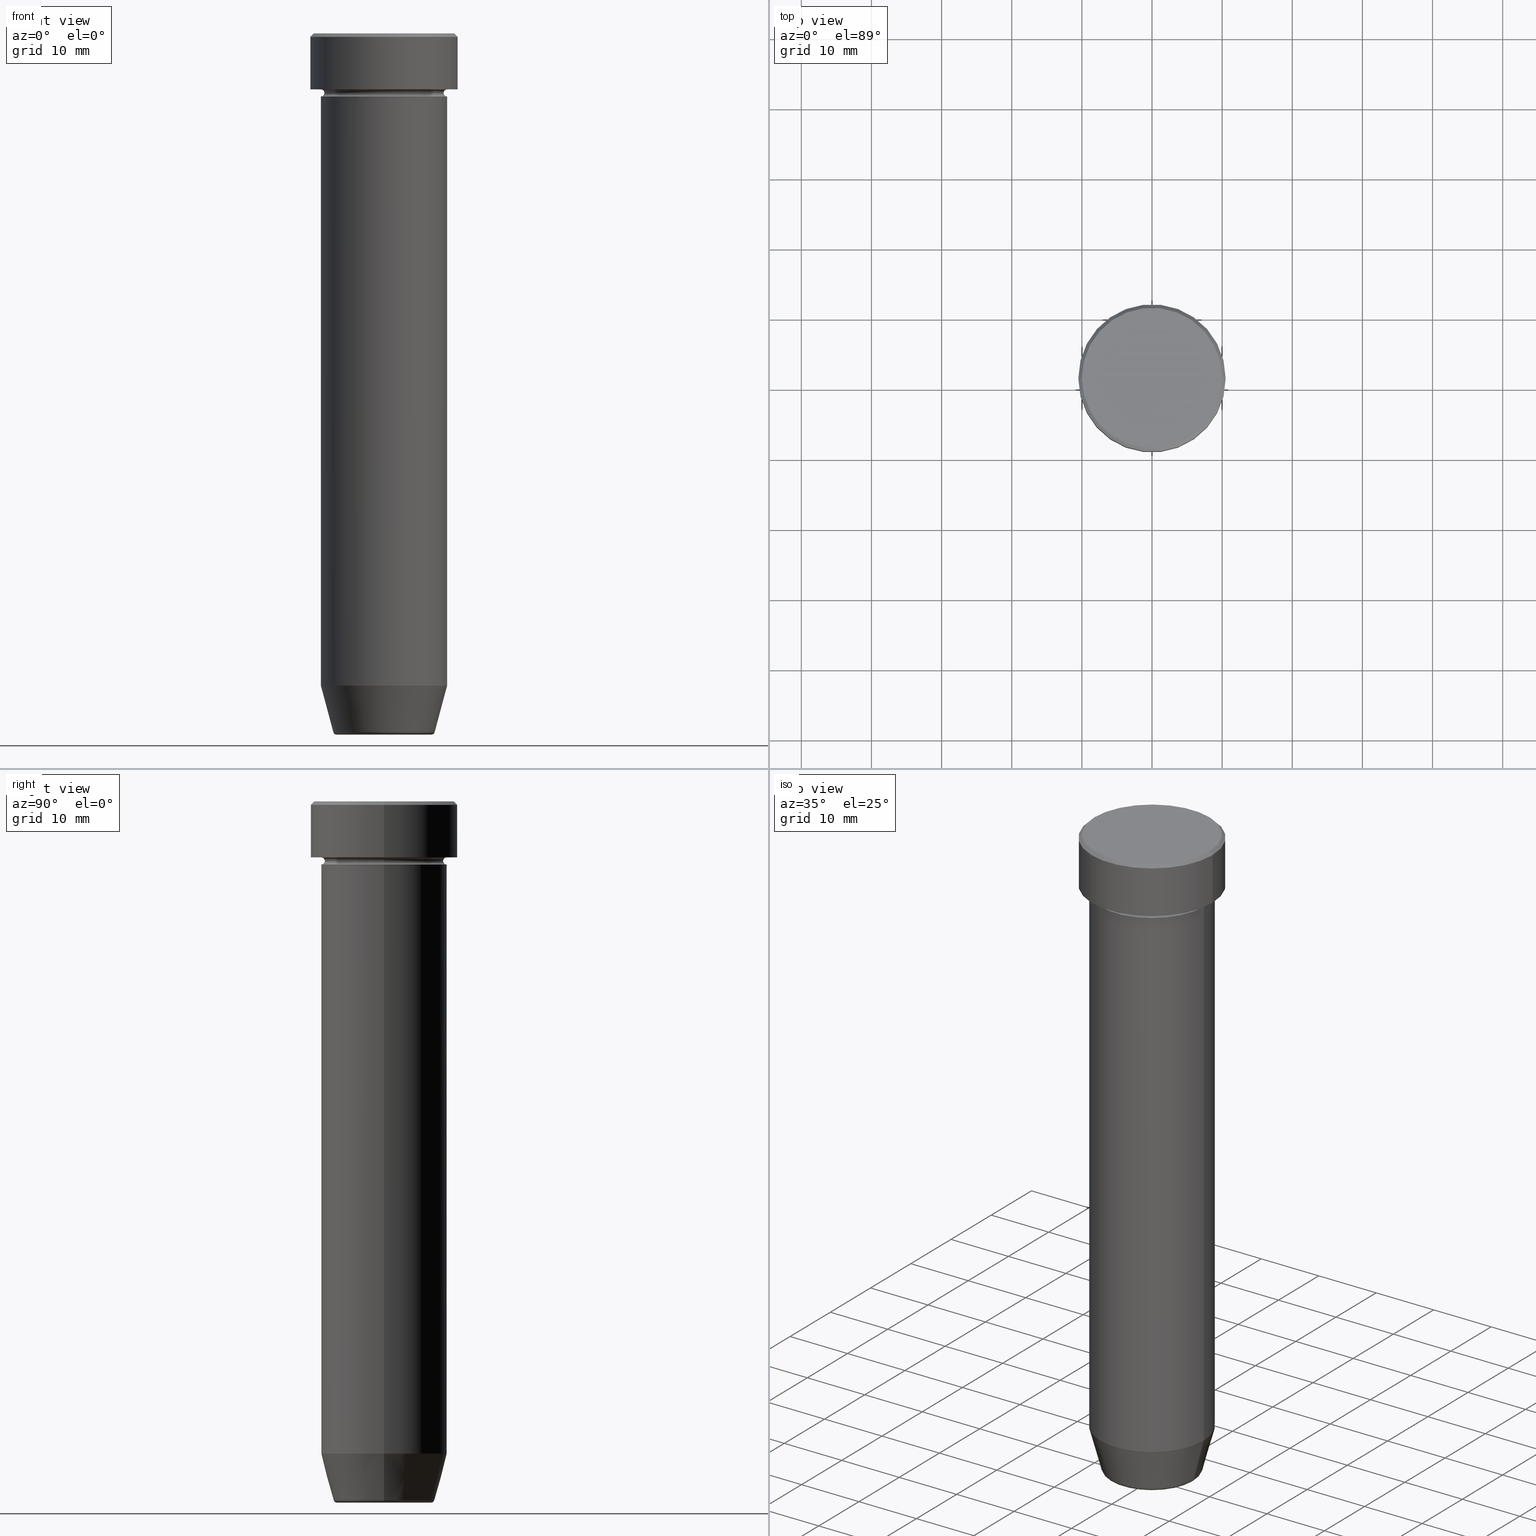
[diagram: canonical four-view strip — front | top / right | iso, engineering-drawing reading convention]
A machine part, canonical four-view strip (front | top / right | iso — engineering-drawing reading convention). The complete STEP part file that produces these views, byte-faithful:
ISO-10303-21;
HEADER;
FILE_DESCRIPTION (( 'STEP AP203' ),
    '1' );
FILE_NAME ('1b87.STEP',
    '2024-01-02T22:08:16',
    ( '' ),
    ( '' ),
    'SwSTEP 2.0',
    'SolidWorks 2019',
    '' );
FILE_SCHEMA (( 'CONFIG_CONTROL_DESIGN' ));
ENDSEC;

DATA;
#1 = CALENDAR_DATE ( 2024, 2, 1 ) ;
#2 = CARTESIAN_POINT ( 'NONE',  ( 0.000000000000000000, 0.000000000000000000, -8.000000000000000000 ) ) ;
#3 = EDGE_CURVE ( 'NONE', #588, #248, #458, .T. ) ;
#4 = CARTESIAN_POINT ( 'NONE',  ( 0.000000000000000000, 0.000000000000000000, -99.62940952255128479 ) ) ;
#5 = CIRCLE ( 'NONE', #575, 9.000000000000000000 ) ;
#6 = ORIENTED_EDGE ( 'NONE', *, *, #279, .T. ) ;
#7 = CONICAL_SURFACE ( 'NONE', #587, 10.00000000000000178, 0.7853981633974447263 ) ;
#8 = DIRECTION ( 'NONE',  ( -0.000000000000000000, -0.000000000000000000, 1.000000000000000000 ) ) ;
#9 = DIRECTION ( 'NONE',  ( 1.000000000000000000, 0.000000000000000000, 0.000000000000000000 ) ) ;
#10 = ORIENTED_EDGE ( 'NONE', *, *, #152, .F. ) ;
#11 = LINE ( 'NONE', #205, #412 ) ;
#12 = ORIENTED_EDGE ( 'NONE', *, *, #175, .T. ) ;
#13 = APPLICATION_PROTOCOL_DEFINITION ( 'international standard', 'config_control_design', 1994, #269 ) ;
#14 = CARTESIAN_POINT ( 'NONE',  ( -9.000000000000000000, 1.102182119232617714E-15, -9.000000000000001776 ) ) ;
#15 = ORIENTED_EDGE ( 'NONE', *, *, #62, .T. ) ;
#16 = CIRCLE ( 'NONE', #505, 6.740692158992655614 ) ;
#17 = AXIS2_PLACEMENT_3D ( 'NONE', #405, #355, #538 ) ;
#18 = CARTESIAN_POINT ( 'NONE',  ( 9.000000000000000000, 1.102182119232617714E-15, -8.000000000000000000 ) ) ;
#19 = ORIENTED_EDGE ( 'NONE', *, *, #140, .T. ) ;
#20 = FACE_OUTER_BOUND ( 'NONE', #246, .T. ) ;
#21 = ORIENTED_EDGE ( 'NONE', *, *, #490, .F. ) ;
#22 = ADVANCED_FACE ( 'NONE', ( #365 ), #503, .T. ) ;
#23 = CARTESIAN_POINT ( 'NONE',  ( -9.000000000000000000, 1.102182119232617714E-15, -8.500000000000000000 ) ) ;
#24 = VERTEX_POINT ( 'NONE', #506 ) ;
#25 = TOROIDAL_SURFACE ( 'NONE', #155, 9.000000000000000000, 0.5000000000000000000 ) ;
#26 = APPROVAL_PERSON_ORGANIZATION ( #45, #323, #277 ) ;
#27 = EDGE_CURVE ( 'NONE', #495, #295, #410, .T. ) ;
#28 = DIRECTION ( 'NONE',  ( -0.000000000000000000, -0.000000000000000000, 1.000000000000000000 ) ) ;
#29 = VERTEX_POINT ( 'NONE', #46 ) ;
#30 = DIRECTION ( 'NONE',  ( 1.000000000000000000, 0.000000000000000000, 0.000000000000000000 ) ) ;
#31 = ORIENTED_EDGE ( 'NONE', *, *, #477, .F. ) ;
#32 = DIRECTION ( 'NONE',  ( -0.000000000000000000, -0.000000000000000000, 1.000000000000000000 ) ) ;
#33 = ORIENTED_EDGE ( 'NONE', *, *, #27, .F. ) ;
#34 = EDGE_CURVE ( 'NONE', #73, #352, #136, .T. ) ;
#35 = AXIS2_PLACEMENT_3D ( 'NONE', #599, #324, #271 ) ;
#36 = TOROIDAL_SURFACE ( 'NONE', #224, 9.000000000000000000, 0.5000000000000000000 ) ;
#37 = AXIS2_PLACEMENT_3D ( 'NONE', #581, #172, #211 ) ;
#38 = CARTESIAN_POINT ( 'NONE',  ( 10.50000000000000000, 0.000000000000000000, -0.5000000000000023315 ) ) ;
#39 = DIRECTION ( 'NONE',  ( 0.000000000000000000, -1.000000000000000000, 0.000000000000000000 ) ) ;
#40 = CC_DESIGN_PERSON_AND_ORGANIZATION_ASSIGNMENT ( #48, #236, ( #432 ) ) ;
#41 = COORDINATED_UNIVERSAL_TIME_OFFSET ( 1, 0, .AHEAD. ) ;
#42 = DIRECTION ( 'NONE',  ( 0.000000000000000000, -0.000000000000000000, 1.000000000000000000 ) ) ;
#43 = ADVANCED_FACE ( 'NONE', ( #321 ), #232, .T. ) ;
#44 = DIRECTION ( 'NONE',  ( -0.2588190451025210725, 3.169619151431769255E-17, 0.9659258262890680902 ) ) ;
#45 = PERSON_AND_ORGANIZATION ( #363, #118 ) ;
#46 = CARTESIAN_POINT ( 'NONE',  ( 9.000000000000000000, 0.000000000000000000, -22.00000000000000000 ) ) ;
#47 = CARTESIAN_POINT ( 'NONE',  ( 0.000000000000000000, 0.000000000000000000, -99.50000000000000000 ) ) ;
#48 = PERSON_AND_ORGANIZATION ( #363, #118 ) ;
#49 = AXIS2_PLACEMENT_3D ( 'NONE', #278, #594, #52 ) ;
#50 = FACE_OUTER_BOUND ( 'NONE', #81, .T. ) ;
#51 = AXIS2_PLACEMENT_3D ( 'NONE', #264, #582, #173 ) ;
#52 = DIRECTION ( 'NONE',  ( -1.000000000000000000, 0.000000000000000000, 0.000000000000000000 ) ) ;
#53 = DIRECTION ( 'NONE',  ( -0.000000000000000000, -0.000000000000000000, 1.000000000000000000 ) ) ;
#54 = VERTEX_POINT ( 'NONE', #368 ) ;
#55 = DATE_AND_TIME ( #299, #326 ) ;
#56 = CARTESIAN_POINT ( 'NONE',  ( 0.000000000000000000, 0.000000000000000000, -22.00000000000000000 ) ) ;
#57 = CIRCLE ( 'NONE', #333, 6.740692158992655614 ) ;
#58 = CC_DESIGN_APPROVAL ( #576, ( #432 ) ) ;
#59 = CC_DESIGN_PERSON_AND_ORGANIZATION_ASSIGNMENT ( #298, #180, ( #311 ) ) ;
#60 = DIRECTION ( 'NONE',  ( 1.000000000000000000, 0.000000000000000000, 0.000000000000000000 ) ) ;
#61 = ORIENTED_EDGE ( 'NONE', *, *, #527, .F. ) ;
#62 = EDGE_CURVE ( 'NONE', #73, #105, #302, .T. ) ;
#63 = FACE_OUTER_BOUND ( 'NONE', #336, .T. ) ;
#64 = ORIENTED_EDGE ( 'NONE', *, *, #291, .T. ) ;
#65 = FACE_OUTER_BOUND ( 'NONE', #383, .T. ) ;
#66 = ORIENTED_EDGE ( 'NONE', *, *, #256, .T. ) ;
#67 = CIRCLE ( 'NONE', #314, 10.00000000000000178 ) ;
#68 = CARTESIAN_POINT ( 'NONE',  ( 0.000000000000000000, 0.000000000000000000, -22.00000000000000000 ) ) ;
#69 = CC_DESIGN_PERSON_AND_ORGANIZATION_ASSIGNMENT ( #595, #280, ( #464 ) ) ;
#70 = ORIENTED_EDGE ( 'NONE', *, *, #349, .T. ) ;
#71 = EDGE_CURVE ( 'NONE', #261, #539, #591, .T. ) ;
#72 = CARTESIAN_POINT ( 'NONE',  ( 0.000000000000000000, 0.000000000000000000, -22.00000000000000000 ) ) ;
#73 = VERTEX_POINT ( 'NONE', #427 ) ;
#74 = FACE_OUTER_BOUND ( 'NONE', #482, .T. ) ;
#75 = EDGE_LOOP ( 'NONE', ( #12, #306 ) ) ;
#76 = PRODUCT_RELATED_PRODUCT_CATEGORY ( 'detail', '', ( #311 ) ) ;
#77 = FACE_OUTER_BOUND ( 'NONE', #565, .T. ) ;
#78 = ORIENTED_EDGE ( 'NONE', *, *, #175, .F. ) ;
#79 = EDGE_CURVE ( 'NONE', #150, #258, #197, .T. ) ;
#80 = DIRECTION ( 'NONE',  ( -1.000000000000000000, 0.000000000000000000, -0.000000000000000000 ) ) ;
#81 = EDGE_LOOP ( 'NONE', ( #116, #161, #517, #10 ) ) ;
#82 = CARTESIAN_POINT ( 'NONE',  ( -9.000000000000000000, 0.000000000000000000, -8.500000000000000000 ) ) ;
#83 = DIRECTION ( 'NONE',  ( 1.000000000000000000, 0.000000000000000000, 0.000000000000000000 ) ) ;
#84 = AXIS2_PLACEMENT_3D ( 'NONE', #162, #267, #579 ) ;
#85 = LOCAL_TIME ( 23, 8, 16.00000000000000000, #92 ) ;
#86 = DIRECTION ( 'NONE',  ( 1.000000000000000000, 0.000000000000000000, 0.000000000000000000 ) ) ;
#87 = DIRECTION ( 'NONE',  ( -1.000000000000000000, 0.000000000000000000, 0.000000000000000000 ) ) ;
#88 = DIRECTION ( 'NONE',  ( 1.000000000000000000, 0.000000000000000000, 0.000000000000000000 ) ) ;
#89 = APPROVAL_STATUS ( 'not_yet_approved' ) ;
#90 = DIRECTION ( 'NONE',  ( 0.000000000000000000, 0.000000000000000000, -1.000000000000000000 ) ) ;
#91 = ADVANCED_FACE ( 'NONE', ( #275 ), #462, .T. ) ;
#92 = COORDINATED_UNIVERSAL_TIME_OFFSET ( 1, 0, .AHEAD. ) ;
#93 = DIRECTION ( 'NONE',  ( -1.000000000000000000, 0.000000000000000000, 0.000000000000000000 ) ) ;
#94 = CARTESIAN_POINT ( 'NONE',  ( -7.124355652982136355, 8.724819346411924116E-16, -100.0000000000000000 ) ) ;
#95 = EDGE_CURVE ( 'NONE', #102, #539, #370, .T. ) ;
#96 = DATE_AND_TIME ( #377, #165 ) ;
#97 = AXIS2_PLACEMENT_3D ( 'NONE', #573, #358, #445 ) ;
#98 = DIRECTION ( 'NONE',  ( -0.000000000000000000, -0.000000000000000000, 1.000000000000000000 ) ) ;
#99 = CIRCLE ( 'NONE', #273, 10.00000000000000178 ) ;
#100 = LINE ( 'NONE', #286, #145 ) ;
#101 = CARTESIAN_POINT ( 'NONE',  ( 0.000000000000000000, 0.000000000000000000, -22.00000000000000000 ) ) ;
#102 = VERTEX_POINT ( 'NONE', #281 ) ;
#103 = DIRECTION ( 'NONE',  ( -1.000000000000000000, 0.000000000000000000, 0.000000000000000000 ) ) ;
#104 = CIRCLE ( 'NONE', #97, 0.5000000000000004441 ) ;
#105 = VERTEX_POINT ( 'NONE', #418 ) ;
#106 = MANIFOLD_SOLID_BREP ( 'Zaoblit4', #176 ) ;
#107 = DIRECTION ( 'NONE',  ( 0.000000000000000000, 0.000000000000000000, -1.000000000000000000 ) ) ;
#108 = ORIENTED_EDGE ( 'NONE', *, *, #477, .T. ) ;
#109 = APPLICATION_PROTOCOL_DEFINITION ( 'international standard', 'config_control_design', 1994, #164 ) ;
#110 = ADVANCED_FACE ( 'NONE', ( #421 ), #392, .F. ) ;
#111 = DIRECTION ( 'NONE',  ( 1.000000000000000000, 0.000000000000000000, 0.000000000000000000 ) ) ;
#112 = ORIENTED_EDGE ( 'NONE', *, *, #398, .F. ) ;
#113 = ADVANCED_FACE ( 'NONE', ( #186 ), #327, .T. ) ;
#114 = CARTESIAN_POINT ( 'NONE',  ( 0.000000000000000000, 0.000000000000000000, 0.000000000000000000 ) ) ;
#115 = AXIS2_PLACEMENT_3D ( 'NONE', #415, #142, #83 ) ;
#116 = ORIENTED_EDGE ( 'NONE', *, *, #228, .F. ) ;
#117 = AXIS2_PLACEMENT_3D ( 'NONE', #329, #510, #93 ) ;
#118 = ORGANIZATION ( 'NEUR�EN�', 'NEUR�EN�', '' ) ;
#119 = ORIENTED_EDGE ( 'NONE', *, *, #79, .T. ) ;
#120 = DIRECTION ( 'NONE',  ( 1.224646799147353207E-16, 1.000000000000000000, 0.000000000000000000 ) ) ;
#121 = ORIENTED_EDGE ( 'NONE', *, *, #513, .F. ) ;
#122 = CARTESIAN_POINT ( 'NONE',  ( 0.000000000000000000, 0.000000000000000000, 0.000000000000000000 ) ) ;
#123 = VERTEX_POINT ( 'NONE', #190 ) ;
#124 = CIRCLE ( 'NONE', #348, 0.5000000000000004441 ) ;
#125 = AXIS2_PLACEMENT_3D ( 'NONE', #220, #407, #80 ) ;
#126 = FACE_OUTER_BOUND ( 'NONE', #406, .T. ) ;
#127 = MECHANICAL_CONTEXT ( 'NONE', #164, 'mechanical' ) ;
#128 = ORIENTED_EDGE ( 'NONE', *, *, #240, .T. ) ;
#129 = ADVANCED_FACE ( 'NONE', ( #375 ), #461, .T. ) ;
#130 = FACE_OUTER_BOUND ( 'NONE', #301, .T. ) ;
#131 = CARTESIAN_POINT ( 'NONE',  ( 0.000000000000000000, 0.000000000000000000, -99.50000000000000000 ) ) ;
#132 = EDGE_CURVE ( 'NONE', #258, #150, #551, .T. ) ;
#133 = CARTESIAN_POINT ( 'NONE',  ( 0.000000000000000000, 0.000000000000000000, 0.000000000000000000 ) ) ;
#134 = CONICAL_SURFACE ( 'NONE', #253, 7.124355652982136355, 0.2617993877991497964 ) ;
#135 = DIRECTION ( 'NONE',  ( -1.000000000000000000, 1.224646799147353454E-16, 0.000000000000000000 ) ) ;
#136 = LINE ( 'NONE', #556, #486 ) ;
#137 = ADVANCED_FACE ( 'NONE', ( #50 ), #431, .T. ) ;
#138 = CALENDAR_DATE ( 2024, 2, 1 ) ;
#139 = DIRECTION ( 'NONE',  ( -0.000000000000000000, -0.000000000000000000, 1.000000000000000000 ) ) ;
#140 = EDGE_CURVE ( 'NONE', #295, #239, #5, .T. ) ;
#141 = DATE_TIME_ROLE ( 'creation_date' ) ;
#142 = DIRECTION ( 'NONE',  ( -0.000000000000000000, -0.000000000000000000, 1.000000000000000000 ) ) ;
#143 = AXIS2_PLACEMENT_3D ( 'NONE', #227, #39, #90 ) ;
#144 = AXIS2_PLACEMENT_3D ( 'NONE', #247, #522, #518 ) ;
#145 = VECTOR ( 'NONE', #577, 1000.000000000000114 ) ;
#146 = DIRECTION ( 'NONE',  ( 0.000000000000000000, 0.000000000000000000, -1.000000000000000000 ) ) ;
#147 = AXIS2_PLACEMENT_3D ( 'NONE', #72, #260, #30 ) ;
#148 = EDGE_CURVE ( 'NONE', #24, #102, #67, .T. ) ;
#149 = DIRECTION ( 'NONE',  ( 0.000000000000000000, 0.000000000000000000, -1.000000000000000000 ) ) ;
#150 = VERTEX_POINT ( 'NONE', #560 ) ;
#151 = CARTESIAN_POINT ( 'NONE',  ( 0.000000000000000000, 0.000000000000000000, -100.0000000000000000 ) ) ;
#152 = EDGE_CURVE ( 'NONE', #569, #526, #124, .T. ) ;
#153 = VERTEX_POINT ( 'NONE', #562 ) ;
#154 = DIRECTION ( 'NONE',  ( 1.000000000000000000, 0.000000000000000000, 0.000000000000000000 ) ) ;
#155 = AXIS2_PLACEMENT_3D ( 'NONE', #385, #479, #60 ) ;
#156 = ORIENTED_EDGE ( 'NONE', *, *, #328, .F. ) ;
#157 = ADVANCED_FACE ( 'NONE', ( #525 ), #36, .F. ) ;
#158 = DIRECTION ( 'NONE',  ( 1.000000000000000000, 0.000000000000000000, 0.000000000000000000 ) ) ;
#159 = ORIENTED_EDGE ( 'NONE', *, *, #520, .T. ) ;
#160 = LINE ( 'NONE', #492, #177 ) ;
#161 = ORIENTED_EDGE ( 'NONE', *, *, #490, .T. ) ;
#162 = CARTESIAN_POINT ( 'NONE',  ( 0.000000000000000000, 0.000000000000000000, 0.000000000000000000 ) ) ;
#163 = ORIENTED_EDGE ( 'NONE', *, *, #240, .F. ) ;
#164 = APPLICATION_CONTEXT ( 'configuration controlled 3d designs of mechanical parts and assemblies' ) ;
#165 = LOCAL_TIME ( 23, 8, 16.00000000000000000, #191 ) ;
#166 = EDGE_CURVE ( 'NONE', #526, #153, #292, .T. ) ;
#167 = CARTESIAN_POINT ( 'NONE',  ( -9.000000000000000000, 1.102182119232617714E-15, 0.000000000000000000 ) ) ;
#168 = ORIENTED_EDGE ( 'NONE', *, *, #196, .F. ) ;
#169 = LINE ( 'NONE', #167, #596 ) ;
#170 = ORIENTED_EDGE ( 'NONE', *, *, #62, .F. ) ;
#171 = EDGE_CURVE ( 'NONE', #261, #588, #521, .T. ) ;
#172 = DIRECTION ( 'NONE',  ( 0.000000000000000000, 0.000000000000000000, -1.000000000000000000 ) ) ;
#173 = DIRECTION ( 'NONE',  ( 1.000000000000000000, 0.000000000000000000, 0.000000000000000000 ) ) ;
#174 = ORIENTED_EDGE ( 'NONE', *, *, #414, .F. ) ;
#175 = EDGE_CURVE ( 'NONE', #569, #54, #16, .T. ) ;
#176 = CLOSED_SHELL ( 'NONE', ( #137, #129, #43, #276, #483, #589, #502, #537 ) ) ;
#177 = VECTOR ( 'NONE', #353, 1000.000000000000000 ) ;
#178 = TOROIDAL_SURFACE ( 'NONE', #351, 6.740692158992655614, 0.5000000000000000000 ) ;
#179 = DIRECTION ( 'NONE',  ( 1.000000000000000000, 0.000000000000000000, 0.000000000000000000 ) ) ;
#180 = PERSON_AND_ORGANIZATION_ROLE ( 'design_owner' ) ;
#181 = DIRECTION ( 'NONE',  ( -0.000000000000000000, -0.000000000000000000, 1.000000000000000000 ) ) ;
#182 = EDGE_CURVE ( 'NONE', #400, #583, #449, .T. ) ;
#183 = DIRECTION ( 'NONE',  ( -0.000000000000000000, -0.000000000000000000, 1.000000000000000000 ) ) ;
#184 = CARTESIAN_POINT ( 'NONE',  ( 7.223655072137189492, 0.000000000000000000, -99.62940952255128479 ) ) ;
#185 = DATE_AND_TIME ( #138, #553 ) ;
#186 = FACE_OUTER_BOUND ( 'NONE', #455, .T. ) ;
#187 = AXIS2_PLACEMENT_3D ( 'NONE', #131, #192, #511 ) ;
#188 = CC_DESIGN_SECURITY_CLASSIFICATION ( #432, ( #464 ) ) ;
#189 = DIRECTION ( 'NONE',  ( 1.000000000000000000, 0.000000000000000000, 0.000000000000000000 ) ) ;
#190 = CARTESIAN_POINT ( 'NONE',  ( -8.499999999999998224, 1.071565949253933927E-15, -8.500000000000000000 ) ) ;
#191 = COORDINATED_UNIVERSAL_TIME_OFFSET ( 1, 0, .AHEAD. ) ;
#192 = DIRECTION ( 'NONE',  ( -0.000000000000000000, -0.000000000000000000, 1.000000000000000000 ) ) ;
#193 = EDGE_CURVE ( 'NONE', #239, #295, #476, .T. ) ;
#194 = PERSON_AND_ORGANIZATION ( #363, #118 ) ;
#195 = DIRECTION ( 'NONE',  ( -0.000000000000000000, -0.000000000000000000, 1.000000000000000000 ) ) ;
#196 = EDGE_CURVE ( 'NONE', #352, #29, #217, .T. ) ;
#197 = CIRCLE ( 'NONE', #530, 9.000000000000000000 ) ;
#198 = AXIS2_PLACEMENT_3D ( 'NONE', #443, #146, #514 ) ;
#199 = DIRECTION ( 'NONE',  ( -0.000000000000000000, -0.000000000000000000, 1.000000000000000000 ) ) ;
#200 = EDGE_LOOP ( 'NONE', ( #342, #529, #214, #574 ) ) ;
#201 = DIRECTION ( 'NONE',  ( 1.000000000000000000, 0.000000000000000000, 0.000000000000000000 ) ) ;
#202 = EDGE_CURVE ( 'NONE', #495, #123, #487, .T. ) ;
#203 = CARTESIAN_POINT ( 'NONE',  ( -10.50000000000000000, 1.285879139104720831E-15, -0.5000000000000023315 ) ) ;
#204 = ORIENTED_EDGE ( 'NONE', *, *, #79, .F. ) ;
#205 = CARTESIAN_POINT ( 'NONE',  ( 9.000000000000000000, 0.000000000000000000, 0.000000000000000000 ) ) ;
#206 =( NAMED_UNIT ( * ) SI_UNIT ( $, .STERADIAN. ) SOLID_ANGLE_UNIT ( ) );
#207 = CARTESIAN_POINT ( 'NONE',  ( 10.50000000000000000, 0.000000000000000000, -8.000000000000000000 ) ) ;
#208 = CC_DESIGN_PERSON_AND_ORGANIZATION_ASSIGNMENT ( #557, #470, ( #464 ) ) ;
#209 = ORIENTED_EDGE ( 'NONE', *, *, #34, .T. ) ;
#210 = CIRCLE ( 'NONE', #305, 0.5000000000000004441 ) ;
#211 = DIRECTION ( 'NONE',  ( 1.000000000000000000, 0.000000000000000000, 0.000000000000000000 ) ) ;
#212 = ORIENTED_EDGE ( 'NONE', *, *, #148, .T. ) ;
#213 = DIRECTION ( 'NONE',  ( -0.000000000000000000, -0.000000000000000000, 1.000000000000000000 ) ) ;
#214 = ORIENTED_EDGE ( 'NONE', *, *, #256, .F. ) ;
#215 = CYLINDRICAL_SURFACE ( 'NONE', #401, 10.50000000000000000 ) ;
#216 = ORIENTED_EDGE ( 'NONE', *, *, #291, .F. ) ;
#217 = CIRCLE ( 'NONE', #422, 9.000000000000000000 ) ;
#218 = PLANE ( 'NONE',  #17 ) ;
#219 = ORIENTED_EDGE ( 'NONE', *, *, #182, .F. ) ;
#220 = CARTESIAN_POINT ( 'NONE',  ( 0.000000000000000000, 9.000000000000000000, -22.00000000000000000 ) ) ;
#221 = ORIENTED_EDGE ( 'NONE', *, *, #202, .T. ) ;
#222 = CARTESIAN_POINT ( 'NONE',  ( 0.000000000000000000, 0.000000000000000000, -8.500000000000000000 ) ) ;
#223 = ORIENTED_EDGE ( 'NONE', *, *, #3, .F. ) ;
#224 = AXIS2_PLACEMENT_3D ( 'NONE', #245, #437, #103 ) ;
#225 = AXIS2_PLACEMENT_3D ( 'NONE', #322, #419, #189 ) ;
#226 = CYLINDRICAL_SURFACE ( 'NONE', #225, 9.000000000000000000 ) ;
#227 = CARTESIAN_POINT ( 'NONE',  ( 9.000000000000000000, 0.000000000000000000, -8.500000000000000000 ) ) ;
#228 = EDGE_CURVE ( 'NONE', #54, #569, #57, .T. ) ;
#229 = FACE_OUTER_BOUND ( 'NONE', #75, .T. ) ;
#230 = DIRECTION ( 'NONE',  ( 1.000000000000000000, 0.000000000000000000, 0.000000000000000000 ) ) ;
#231 = FACE_OUTER_BOUND ( 'NONE', #308, .T. ) ;
#232 = CYLINDRICAL_SURFACE ( 'NONE', #115, 9.000000000000000000 ) ;
#233 = AXIS2_PLACEMENT_3D ( 'NONE', #296, #481, #379 ) ;
#234 = CIRCLE ( 'NONE', #37, 10.50000000000000000 ) ;
#235 = DIRECTION ( 'NONE',  ( -0.000000000000000000, -0.000000000000000000, 1.000000000000000000 ) ) ;
#236 = PERSON_AND_ORGANIZATION_ROLE ( 'classification_officer' ) ;
#237 = ADVANCED_FACE ( 'NONE', ( #334 ), #25, .F. ) ;
#238 = DIRECTION ( 'NONE',  ( 1.000000000000000000, 0.000000000000000000, 0.000000000000000000 ) ) ;
#239 = VERTEX_POINT ( 'NONE', #14 ) ;
#240 = EDGE_CURVE ( 'NONE', #400, #295, #11, .T. ) ;
#241 = CIRCLE ( 'NONE', #233, 9.000000000000000000 ) ;
#242 = APPROVAL_PERSON_ORGANIZATION ( #194, #576, #367 ) ;
#243 = DIRECTION ( 'NONE',  ( -0.000000000000000000, -0.000000000000000000, 1.000000000000000000 ) ) ;
#244 = ORIENTED_EDGE ( 'NONE', *, *, #171, .F. ) ;
#245 = CARTESIAN_POINT ( 'NONE',  ( 0.000000000000000000, 0.000000000000000000, -8.500000000000000000 ) ) ;
#246 = EDGE_LOOP ( 'NONE', ( #310, #448, #70, #31 ) ) ;
#247 = CARTESIAN_POINT ( 'NONE',  ( 0.000000000000000000, 0.000000000000000000, -8.500000000000000000 ) ) ;
#248 = VERTEX_POINT ( 'NONE', #203 ) ;
#249 = VECTOR ( 'NONE', #181, 1000.000000000000000 ) ;
#250 = PLANE ( 'NONE',  #198 ) ;
#251 = AXIS2_PLACEMENT_3D ( 'NONE', #56, #484, #335 ) ;
#252 = EDGE_LOOP ( 'NONE', ( #21, #78, #288, #112 ) ) ;
#253 = AXIS2_PLACEMENT_3D ( 'NONE', #339, #8, #201 ) ;
#254 = FACE_OUTER_BOUND ( 'NONE', #354, .T. ) ;
#255 = ORIENTED_EDGE ( 'NONE', *, *, #343, .F. ) ;
#256 = EDGE_CURVE ( 'NONE', #105, #73, #241, .T. ) ;
#257 = DIRECTION ( 'NONE',  ( -1.000000000000000000, 0.000000000000000000, 0.000000000000000000 ) ) ;
#258 = VERTEX_POINT ( 'NONE', #18 ) ;
#259 = ADVANCED_FACE ( 'NONE', ( #63 ), #360, .F. ) ;
#260 = DIRECTION ( 'NONE',  ( -0.000000000000000000, -0.000000000000000000, 1.000000000000000000 ) ) ;
#261 = VERTEX_POINT ( 'NONE', #207 ) ;
#262 = CIRCLE ( 'NONE', #380, 10.50000000000000000 ) ;
#263 = PLANE ( 'NONE',  #125 ) ;
#264 = CARTESIAN_POINT ( 'NONE',  ( 0.000000000000000000, 0.000000000000000000, 0.000000000000000000 ) ) ;
#265 = ORIENTED_EDGE ( 'NONE', *, *, #71, .F. ) ;
#266 = DESIGN_CONTEXT ( 'detailed design', #269, 'design' ) ;
#267 = DIRECTION ( 'NONE',  ( 0.000000000000000000, 0.000000000000000000, -1.000000000000000000 ) ) ;
#268 = ORIENTED_EDGE ( 'NONE', *, *, #570, .F. ) ;
#269 = APPLICATION_CONTEXT ( 'configuration controlled 3d designs of mechanical parts and assemblies' ) ;
#270 = LINE ( 'NONE', #94, #532 ) ;
#271 = DIRECTION ( 'NONE',  ( 1.000000000000000000, 0.000000000000000000, 0.000000000000000000 ) ) ;
#272 = AXIS2_PLACEMENT_3D ( 'NONE', #555, #139, #546 ) ;
#273 = AXIS2_PLACEMENT_3D ( 'NONE', #500, #32, #549 ) ;
#274 = DATE_AND_TIME ( #1, #85 ) ;
#275 = FACE_OUTER_BOUND ( 'NONE', #395, .T. ) ;
#276 = ADVANCED_FACE ( 'NONE', ( #65 ), #250, .F. ) ;
#277 = APPROVAL_ROLE ( '' ) ;
#278 = CARTESIAN_POINT ( 'NONE',  ( 0.000000000000000000, 0.000000000000000000, -8.500000000000000000 ) ) ;
#279 = EDGE_CURVE ( 'NONE', #526, #105, #100, .T. ) ;
#280 = PERSON_AND_ORGANIZATION_ROLE ( 'creator' ) ;
#281 = CARTESIAN_POINT ( 'NONE',  ( 10.00000000000000178, 1.255262969126037241E-15, 0.000000000000000000 ) ) ;
#282 = CLOSED_SHELL ( 'NONE', ( #435, #110, #259, #544, #91, #457, #22, #287, #416, #113, #237, #157, #362 ) ) ;
#283 = CIRCLE ( 'NONE', #478, 0.5000000000000004441 ) ;
#284 = DATE_TIME_ROLE ( 'classification_date' ) ;
#285 = DIRECTION ( 'NONE',  ( -0.000000000000000000, -0.000000000000000000, 1.000000000000000000 ) ) ;
#286 = CARTESIAN_POINT ( 'NONE',  ( 7.124355652982136355, 0.000000000000000000, -100.0000000000000000 ) ) ;
#287 = ADVANCED_FACE ( 'NONE', ( #254 ), #215, .T. ) ;
#288 = ORIENTED_EDGE ( 'NONE', *, *, #152, .T. ) ;
#289 = DIRECTION ( 'NONE',  ( 0.000000000000000000, 0.000000000000000000, -1.000000000000000000 ) ) ;
#290 = ORIENTED_EDGE ( 'NONE', *, *, #3, .T. ) ;
#291 = EDGE_CURVE ( 'NONE', #495, #258, #104, .T. ) ;
#292 = CIRCLE ( 'NONE', #325, 7.223655072137189492 ) ;
#293 = APPROVAL_PERSON_ORGANIZATION ( #391, #357, #501 ) ;
#294 = DIRECTION ( 'NONE',  ( 1.000000000000000000, 0.000000000000000000, 0.000000000000000000 ) ) ;
#295 = VERTEX_POINT ( 'NONE', #535 ) ;
#296 = CARTESIAN_POINT ( 'NONE',  ( 0.000000000000000000, 0.000000000000000000, -93.00000000000000000 ) ) ;
#297 = ORIENTED_EDGE ( 'NONE', *, *, #193, .F. ) ;
#298 = PERSON_AND_ORGANIZATION ( #363, #118 ) ;
#299 = CALENDAR_DATE ( 2024, 2, 1 ) ;
#300 = DIRECTION ( 'NONE',  ( -0.000000000000000000, -0.000000000000000000, 1.000000000000000000 ) ) ;
#301 = EDGE_LOOP ( 'NONE', ( #121, #561, #6, #170 ) ) ;
#302 = CIRCLE ( 'NONE', #35, 9.000000000000000000 ) ;
#303 = AXIS2_PLACEMENT_3D ( 'NONE', #552, #548, #230 ) ;
#304 = DIRECTION ( 'NONE',  ( -0.000000000000000000, -0.000000000000000000, 1.000000000000000000 ) ) ;
#305 = AXIS2_PLACEMENT_3D ( 'NONE', #82, #592, #319 ) ;
#306 = ORIENTED_EDGE ( 'NONE', *, *, #228, .T. ) ;
#307 = DIRECTION ( 'NONE',  ( -0.000000000000000000, -0.000000000000000000, 1.000000000000000000 ) ) ;
#308 = EDGE_LOOP ( 'NONE', ( #446, #429, #491, #163 ) ) ;
#309 = DIRECTION ( 'NONE',  ( -0.000000000000000000, -0.000000000000000000, 1.000000000000000000 ) ) ;
#310 = ORIENTED_EDGE ( 'NONE', *, *, #95, .F. ) ;
#311 = PRODUCT ( '1b87', '1b87', '', ( #127 ) ) ;
#312 = CARTESIAN_POINT ( 'NONE',  ( 0.000000000000000000, 0.000000000000000000, 0.000000000000000000 ) ) ;
#313 = ORIENTED_EDGE ( 'NONE', *, *, #349, .F. ) ;
#314 = AXIS2_PLACEMENT_3D ( 'NONE', #341, #428, #294 ) ;
#315 = CC_DESIGN_APPROVAL ( #323, ( #464 ) ) ;
#316 = CC_DESIGN_PERSON_AND_ORGANIZATION_ASSIGNMENT ( #374, #593, ( #430 ) ) ;
#317 = CARTESIAN_POINT ( 'NONE',  ( 9.000000000000000000, 0.000000000000000000, 0.000000000000000000 ) ) ;
#318 = ORIENTED_EDGE ( 'NONE', *, *, #132, .F. ) ;
#319 = DIRECTION ( 'NONE',  ( 0.000000000000000000, 0.000000000000000000, -1.000000000000000000 ) ) ;
#320 = APPROVAL_STATUS ( 'not_yet_approved' ) ;
#321 = FACE_OUTER_BOUND ( 'NONE', #536, .T. ) ;
#322 = CARTESIAN_POINT ( 'NONE',  ( 0.000000000000000000, 0.000000000000000000, 0.000000000000000000 ) ) ;
#323 = APPROVAL ( #89, 'NEUR�EN�' ) ;
#324 = DIRECTION ( 'NONE',  ( -0.000000000000000000, -0.000000000000000000, 1.000000000000000000 ) ) ;
#325 = AXIS2_PLACEMENT_3D ( 'NONE', #4, #199, #344 ) ;
#326 = LOCAL_TIME ( 23, 8, 16.00000000000000000, #387 ) ;
#327 = CYLINDRICAL_SURFACE ( 'NONE', #585, 9.000000000000000000 ) ;
#328 = EDGE_CURVE ( 'NONE', #248, #539, #262, .T. ) ;
#329 = CARTESIAN_POINT ( 'NONE',  ( 0.000000000000000000, 0.000000000000000000, -8.000000000000000000 ) ) ;
#330 = EDGE_CURVE ( 'NONE', #583, #239, #169, .T. ) ;
#331 = APPROVAL_DATE_TIME ( #420, #323 ) ;
#332 = CARTESIAN_POINT ( 'NONE',  ( 0.000000000000000000, 0.000000000000000000, 0.000000000000000000 ) ) ;
#333 = AXIS2_PLACEMENT_3D ( 'NONE', #433, #289, #9 ) ;
#334 = FACE_OUTER_BOUND ( 'NONE', #338, .T. ) ;
#335 = DIRECTION ( 'NONE',  ( 1.000000000000000000, 0.000000000000000000, 0.000000000000000000 ) ) ;
#336 = EDGE_LOOP ( 'NONE', ( #268, #578, #493, #33 ) ) ;
#337 = DIRECTION ( 'NONE',  ( 1.000000000000000000, 0.000000000000000000, 0.000000000000000000 ) ) ;
#338 = EDGE_LOOP ( 'NONE', ( #174, #397, #480, #19 ) ) ;
#339 = CARTESIAN_POINT ( 'NONE',  ( 0.000000000000000000, 0.000000000000000000, -100.0000000000000000 ) ) ;
#340 = AXIS2_PLACEMENT_3D ( 'NONE', #516, #53, #473 ) ;
#341 = CARTESIAN_POINT ( 'NONE',  ( 0.000000000000000000, 0.000000000000000000, 0.000000000000000000 ) ) ;
#342 = ORIENTED_EDGE ( 'NONE', *, *, #166, .T. ) ;
#343 = EDGE_CURVE ( 'NONE', #583, #400, #472, .T. ) ;
#344 = DIRECTION ( 'NONE',  ( -1.000000000000000000, 0.000000000000000000, 0.000000000000000000 ) ) ;
#345 = ORIENTED_EDGE ( 'NONE', *, *, #389, .F. ) ;
#346 = CARTESIAN_POINT ( 'NONE',  ( 0.000000000000000000, 0.000000000000000000, -0.5000000000000023315 ) ) ;
#347 = ORIENTED_EDGE ( 'NONE', *, *, #196, .T. ) ;
#348 = AXIS2_PLACEMENT_3D ( 'NONE', #475, #388, #149 ) ;
#349 = EDGE_CURVE ( 'NONE', #24, #248, #160, .T. ) ;
#350 = CARTESIAN_POINT ( 'NONE',  ( -9.000000000000000000, 1.102182119232617714E-15, -22.00000000000000000 ) ) ;
#351 = AXIS2_PLACEMENT_3D ( 'NONE', #47, #235, #86 ) ;
#352 = VERTEX_POINT ( 'NONE', #350 ) ;
#353 = DIRECTION ( 'NONE',  ( -0.7071067811865450192, 0.000000000000000000, -0.7071067811865500152 ) ) ;
#354 = EDGE_LOOP ( 'NONE', ( #223, #519, #497, #108 ) ) ;
#355 = DIRECTION ( 'NONE',  ( 0.000000000000000000, 0.000000000000000000, -1.000000000000000000 ) ) ;
#356 = ORIENTED_EDGE ( 'NONE', *, *, #132, .T. ) ;
#357 = APPROVAL ( #524, 'NEUR�EN�' ) ;
#358 = DIRECTION ( 'NONE',  ( -1.224646799147353207E-16, 1.000000000000000000, 0.000000000000000000 ) ) ;
#359 = ORIENTED_EDGE ( 'NONE', *, *, #559, .F. ) ;
#360 = TOROIDAL_SURFACE ( 'NONE', #371, 9.000000000000000000, 0.5000000000000000000 ) ;
#361 = AXIS2_PLACEMENT_3D ( 'NONE', #465, #469, #88 ) ;
#362 = ADVANCED_FACE ( 'NONE', ( #20 ), #488, .T. ) ;
#363 = PERSON ( 'NEUR�EN�', 'NEUR�EN�', 'NEUR�EN�', ('NEUR�EN�'), ('NEUR�EN�'), ('NEUR�EN�') ) ;
#364 = CARTESIAN_POINT ( 'NONE',  ( -9.000000000000000000, 1.102182119232617714E-15, -22.00000000000000000 ) ) ;
#365 = FACE_OUTER_BOUND ( 'NONE', #485, .T. ) ;
#366 = CARTESIAN_POINT ( 'NONE',  ( 8.499999999999998224, 0.000000000000000000, -8.500000000000000000 ) ) ;
#367 = APPROVAL_ROLE ( '' ) ;
#368 = CARTESIAN_POINT ( 'NONE',  ( -6.740692158992655614, 8.550696569392681737E-16, -100.0000000000000000 ) ) ;
#369 = EDGE_CURVE ( 'NONE', #105, #29, #399, .T. ) ;
#370 = LINE ( 'NONE', #468, #540 ) ;
#371 = AXIS2_PLACEMENT_3D ( 'NONE', #394, #568, #158 ) ;
#372 = CIRCLE ( 'NONE', #393, 0.5000000000000004441 ) ;
#373 = PLANE ( 'NONE',  #361 ) ;
#374 = PERSON_AND_ORGANIZATION ( #363, #118 ) ;
#375 = FACE_OUTER_BOUND ( 'NONE', #200, .T. ) ;
#376 = DIRECTION ( 'NONE',  ( -0.000000000000000000, -0.000000000000000000, 1.000000000000000000 ) ) ;
#377 = CALENDAR_DATE ( 2024, 2, 1 ) ;
#378 = CARTESIAN_POINT ( 'NONE',  ( 10.50000000000000000, 0.000000000000000000, 0.000000000000000000 ) ) ;
#379 = DIRECTION ( 'NONE',  ( 1.000000000000000000, 0.000000000000000000, 0.000000000000000000 ) ) ;
#380 = AXIS2_PLACEMENT_3D ( 'NONE', #346, #456, #402 ) ;
#381 =( GEOMETRIC_REPRESENTATION_CONTEXT ( 3 ) GLOBAL_UNCERTAINTY_ASSIGNED_CONTEXT ( ( #459 ) ) GLOBAL_UNIT_ASSIGNED_CONTEXT ( ( #440, #572, #206 ) ) REPRESENTATION_CONTEXT ( 'NONE', 'WORKASPACE' ) );
#382 = CARTESIAN_POINT ( 'NONE',  ( 0.000000000000000000, 0.000000000000000000, -8.000000000000000000 ) ) ;
#383 = EDGE_LOOP ( 'NONE', ( #534, #347 ) ) ;
#384 = APPROVAL_DATE_TIME ( #55, #576 ) ;
#385 = CARTESIAN_POINT ( 'NONE',  ( 0.000000000000000000, 0.000000000000000000, -8.500000000000000000 ) ) ;
#386 = ORIENTED_EDGE ( 'NONE', *, *, #527, .T. ) ;
#387 = COORDINATED_UNIVERSAL_TIME_OFFSET ( 1, 0, .AHEAD. ) ;
#388 = DIRECTION ( 'NONE',  ( 0.000000000000000000, -1.000000000000000000, 0.000000000000000000 ) ) ;
#389 = EDGE_CURVE ( 'NONE', #29, #352, #542, .T. ) ;
#390 = EDGE_LOOP ( 'NONE', ( #119, #356 ) ) ;
#391 = PERSON_AND_ORGANIZATION ( #363, #118 ) ;
#392 = TOROIDAL_SURFACE ( 'NONE', #49, 9.000000000000000000, 0.5000000000000000000 ) ;
#393 = AXIS2_PLACEMENT_3D ( 'NONE', #23, #120, #571 ) ;
#394 = CARTESIAN_POINT ( 'NONE',  ( 0.000000000000000000, 0.000000000000000000, -8.500000000000000000 ) ) ;
#395 = EDGE_LOOP ( 'NONE', ( #523, #290, #439, #265 ) ) ;
#396 = FACE_OUTER_BOUND ( 'NONE', #452, .T. ) ;
#397 = ORIENTED_EDGE ( 'NONE', *, *, #202, .F. ) ;
#398 = EDGE_CURVE ( 'NONE', #153, #526, #451, .T. ) ;
#399 = LINE ( 'NONE', #317, #531 ) ;
#400 = VERTEX_POINT ( 'NONE', #447 ) ;
#401 = AXIS2_PLACEMENT_3D ( 'NONE', #312, #213, #453 ) ;
#402 = DIRECTION ( 'NONE',  ( 1.000000000000000000, 0.000000000000000000, 0.000000000000000000 ) ) ;
#403 = CIRCLE ( 'NONE', #442, 10.50000000000000000 ) ;
#404 = ORIENTED_EDGE ( 'NONE', *, *, #520, .F. ) ;
#405 = CARTESIAN_POINT ( 'NONE',  ( 0.000000000000000000, 10.50000000000000000, -8.000000000000000000 ) ) ;
#406 = EDGE_LOOP ( 'NONE', ( #61, #499, #156, #313 ) ) ;
#407 = DIRECTION ( 'NONE',  ( 0.000000000000000000, 0.000000000000000000, -1.000000000000000000 ) ) ;
#408 = ORIENTED_EDGE ( 'NONE', *, *, #343, .T. ) ;
#409 = DIRECTION ( 'NONE',  ( 1.224646799147353207E-16, 1.000000000000000000, 0.000000000000000000 ) ) ;
#410 = CIRCLE ( 'NONE', #143, 0.5000000000000004441 ) ;
#411 = CARTESIAN_POINT ( 'NONE',  ( -10.50000000000000000, 1.285879139104720831E-15, 0.000000000000000000 ) ) ;
#412 = VECTOR ( 'NONE', #564, 1000.000000000000000 ) ;
#413 = LOCAL_TIME ( 23, 8, 16.00000000000000000, #425 ) ;
#414 = EDGE_CURVE ( 'NONE', #123, #239, #372, .T. ) ;
#415 = CARTESIAN_POINT ( 'NONE',  ( 0.000000000000000000, 0.000000000000000000, 0.000000000000000000 ) ) ;
#416 = ADVANCED_FACE ( 'NONE', ( #494, #74 ), #218, .T. ) ;
#417 = CARTESIAN_POINT ( 'NONE',  ( -6.740692158992655614, 8.254967076548017297E-16, -99.50000000000000000 ) ) ;
#418 = CARTESIAN_POINT ( 'NONE',  ( 9.000000000000000000, 0.000000000000000000, -93.00000000000000000 ) ) ;
#419 = DIRECTION ( 'NONE',  ( -0.000000000000000000, -0.000000000000000000, 1.000000000000000000 ) ) ;
#420 = DATE_AND_TIME ( #467, #413 ) ;
#421 = FACE_OUTER_BOUND ( 'NONE', #580, .T. ) ;
#422 = AXIS2_PLACEMENT_3D ( 'NONE', #101, #243, #337 ) ;
#423 = AXIS2_PLACEMENT_3D ( 'NONE', #114, #304, #489 ) ;
#424 = CARTESIAN_POINT ( 'NONE',  ( 0.000000000000000000, 0.000000000000000000, -8.000000000000000000 ) ) ;
#425 = COORDINATED_UNIVERSAL_TIME_OFFSET ( 1, 0, .AHEAD. ) ;
#426 = CARTESIAN_POINT ( 'NONE',  ( 0.000000000000000000, 0.000000000000000000, -9.000000000000001776 ) ) ;
#427 = CARTESIAN_POINT ( 'NONE',  ( -9.000000000000000000, 1.102182119232617714E-15, -93.00000000000000000 ) ) ;
#428 = DIRECTION ( 'NONE',  ( -0.000000000000000000, -0.000000000000000000, 1.000000000000000000 ) ) ;
#429 = ORIENTED_EDGE ( 'NONE', *, *, #330, .T. ) ;
#430 = PRODUCT_DEFINITION ( 'NEZN�M�', '', #464, #266 ) ;
#431 = TOROIDAL_SURFACE ( 'NONE', #187, 6.740692158992655614, 0.5000000000000000000 ) ;
#432 = SECURITY_CLASSIFICATION ( '', '', #590 ) ;
#433 = CARTESIAN_POINT ( 'NONE',  ( 0.000000000000000000, 0.000000000000000000, -100.0000000000000000 ) ) ;
#434 = ORIENTED_EDGE ( 'NONE', *, *, #369, .F. ) ;
#435 = ADVANCED_FACE ( 'NONE', ( #126 ), #7, .T. ) ;
#436 = SHAPE_DEFINITION_REPRESENTATION ( #454, #515 ) ;
#437 = DIRECTION ( 'NONE',  ( 0.000000000000000000, 0.000000000000000000, -1.000000000000000000 ) ) ;
#438 = ORIENTED_EDGE ( 'NONE', *, *, #369, .T. ) ;
#439 = ORIENTED_EDGE ( 'NONE', *, *, #328, .T. ) ;
#440 =( LENGTH_UNIT ( ) NAMED_UNIT ( * ) SI_UNIT ( .MILLI., .METRE. ) );
#441 = AXIS2_PLACEMENT_3D ( 'NONE', #68, #309, #541 ) ;
#442 = AXIS2_PLACEMENT_3D ( 'NONE', #424, #376, #554 ) ;
#443 = CARTESIAN_POINT ( 'NONE',  ( 0.000000000000000000, 0.000000000000000000, -22.00000000000000000 ) ) ;
#444 = ORIENTED_EDGE ( 'NONE', *, *, #570, .T. ) ;
#445 = DIRECTION ( 'NONE',  ( -1.000000000000000000, -1.224646799147353454E-16, 0.000000000000000000 ) ) ;
#446 = ORIENTED_EDGE ( 'NONE', *, *, #182, .T. ) ;
#447 = CARTESIAN_POINT ( 'NONE',  ( 9.000000000000000000, 0.000000000000000000, -22.00000000000000000 ) ) ;
#448 = ORIENTED_EDGE ( 'NONE', *, *, #148, .F. ) ;
#449 = CIRCLE ( 'NONE', #251, 9.000000000000000000 ) ;
#450 = CARTESIAN_POINT ( 'NONE',  ( 0.000000000000000000, 0.000000000000000000, -99.62940952255128479 ) ) ;
#451 = CIRCLE ( 'NONE', #558, 7.223655072137189492 ) ;
#452 = EDGE_LOOP ( 'NONE', ( #563, #15, #438, #168 ) ) ;
#453 = DIRECTION ( 'NONE',  ( 1.000000000000000000, 0.000000000000000000, 0.000000000000000000 ) ) ;
#454 = PRODUCT_DEFINITION_SHAPE ( 'NONE', 'NONE',  #430 ) ;
#455 = EDGE_LOOP ( 'NONE', ( #474, #408, #128, #297 ) ) ;
#456 = DIRECTION ( 'NONE',  ( 0.000000000000000000, 0.000000000000000000, -1.000000000000000000 ) ) ;
#457 = ADVANCED_FACE ( 'NONE', ( #77 ), #263, .T. ) ;
#458 = LINE ( 'NONE', #411, #249 ) ;
#459 = UNCERTAINTY_MEASURE_WITH_UNIT (LENGTH_MEASURE( 1.000000000000000082E-05 ), #440, 'distance_accuracy_value', 'NONE');
#460 = VECTOR ( 'NONE', #195, 1000.000000000000000 ) ;
#461 = CONICAL_SURFACE ( 'NONE', #272, 7.124355652982136355, 0.2617993877991497964 ) ;
#462 = CYLINDRICAL_SURFACE ( 'NONE', #303, 10.50000000000000000 ) ;
#463 = CC_DESIGN_DATE_AND_TIME_ASSIGNMENT ( #96, #284, ( #432 ) ) ;
#464 = PRODUCT_DEFINITION_FORMATION_WITH_SPECIFIED_SOURCE ( 'LIBOVOLN�', '', #311, .NOT_KNOWN. ) ;
#465 = CARTESIAN_POINT ( 'NONE',  ( 0.000000000000000000, 6.123233995736767663E-15, -100.0000000000000000 ) ) ;
#466 = DIRECTION ( 'NONE',  ( 0.7071067811865450192, 8.659560562354902043E-17, -0.7071067811865500152 ) ) ;
#467 = CALENDAR_DATE ( 2024, 2, 1 ) ;
#468 = CARTESIAN_POINT ( 'NONE',  ( 10.00000000000000178, 1.224646799147353454E-15, 0.000000000000000000 ) ) ;
#469 = DIRECTION ( 'NONE',  ( 0.000000000000000000, -0.000000000000000000, 1.000000000000000000 ) ) ;
#470 = PERSON_AND_ORGANIZATION_ROLE ( 'design_supplier' ) ;
#471 = DIRECTION ( 'NONE',  ( 1.000000000000000000, 0.000000000000000000, 0.000000000000000000 ) ) ;
#472 = CIRCLE ( 'NONE', #441, 9.000000000000000000 ) ;
#473 = DIRECTION ( 'NONE',  ( 1.000000000000000000, 0.000000000000000000, 0.000000000000000000 ) ) ;
#474 = ORIENTED_EDGE ( 'NONE', *, *, #330, .F. ) ;
#475 = CARTESIAN_POINT ( 'NONE',  ( 6.740692158992655614, 0.000000000000000000, -99.50000000000000000 ) ) ;
#476 = CIRCLE ( 'NONE', #340, 9.000000000000000000 ) ;
#477 = EDGE_CURVE ( 'NONE', #539, #248, #234, .T. ) ;
#478 = AXIS2_PLACEMENT_3D ( 'NONE', #417, #409, #135 ) ;
#479 = DIRECTION ( 'NONE',  ( -0.000000000000000000, -0.000000000000000000, 1.000000000000000000 ) ) ;
#480 = ORIENTED_EDGE ( 'NONE', *, *, #27, .T. ) ;
#481 = DIRECTION ( 'NONE',  ( -0.000000000000000000, -0.000000000000000000, 1.000000000000000000 ) ) ;
#482 = EDGE_LOOP ( 'NONE', ( #244, #359 ) ) ;
#483 = ADVANCED_FACE ( 'NONE', ( #396 ), #528, .T. ) ;
#484 = DIRECTION ( 'NONE',  ( -0.000000000000000000, -0.000000000000000000, 1.000000000000000000 ) ) ;
#485 = EDGE_LOOP ( 'NONE', ( #212, #386 ) ) ;
#486 = VECTOR ( 'NONE', #98, 1000.000000000000000 ) ;
#487 = CIRCLE ( 'NONE', #144, 8.499999999999998224 ) ;
#488 = CONICAL_SURFACE ( 'NONE', #84, 10.00000000000000178, 0.7853981633974447263 ) ;
#489 = DIRECTION ( 'NONE',  ( 1.000000000000000000, 0.000000000000000000, 0.000000000000000000 ) ) ;
#490 = EDGE_CURVE ( 'NONE', #54, #153, #283, .T. ) ;
#491 = ORIENTED_EDGE ( 'NONE', *, *, #140, .F. ) ;
#492 = CARTESIAN_POINT ( 'NONE',  ( -10.00000000000000178, 0.000000000000000000, 0.000000000000000000 ) ) ;
#493 = ORIENTED_EDGE ( 'NONE', *, *, #193, .T. ) ;
#494 = FACE_BOUND ( 'NONE', #390, .T. ) ;
#495 = VERTEX_POINT ( 'NONE', #366 ) ;
#496 = DIRECTION ( 'NONE',  ( 0.000000000000000000, 0.000000000000000000, -1.000000000000000000 ) ) ;
#497 = ORIENTED_EDGE ( 'NONE', *, *, #71, .T. ) ;
#498 = DIRECTION ( 'NONE',  ( -1.000000000000000000, 0.000000000000000000, 0.000000000000000000 ) ) ;
#499 = ORIENTED_EDGE ( 'NONE', *, *, #95, .T. ) ;
#500 = CARTESIAN_POINT ( 'NONE',  ( 0.000000000000000000, 0.000000000000000000, 0.000000000000000000 ) ) ;
#501 = APPROVAL_ROLE ( '' ) ;
#502 = ADVANCED_FACE ( 'NONE', ( #229 ), #373, .F. ) ;
#503 = PLANE ( 'NONE',  #584 ) ;
#504 = APPROVAL_DATE_TIME ( #274, #357 ) ;
#505 = AXIS2_PLACEMENT_3D ( 'NONE', #151, #107, #111 ) ;
#506 = CARTESIAN_POINT ( 'NONE',  ( -10.00000000000000178, 0.000000000000000000, 0.000000000000000000 ) ) ;
#507 = AXIS2_PLACEMENT_3D ( 'NONE', #222, #586, #179 ) ;
#508 = DIRECTION ( 'NONE',  ( -0.000000000000000000, -0.000000000000000000, 1.000000000000000000 ) ) ;
#509 = MANIFOLD_SOLID_BREP ( 'Zkosen�1', #282 ) ;
#510 = DIRECTION ( 'NONE',  ( -0.000000000000000000, -0.000000000000000000, 1.000000000000000000 ) ) ;
#511 = DIRECTION ( 'NONE',  ( 1.000000000000000000, 0.000000000000000000, 0.000000000000000000 ) ) ;
#512 = CIRCLE ( 'NONE', #507, 8.499999999999998224 ) ;
#513 = EDGE_CURVE ( 'NONE', #153, #73, #270, .T. ) ;
#514 = DIRECTION ( 'NONE',  ( -1.000000000000000000, 0.000000000000000000, -0.000000000000000000 ) ) ;
#515 = ADVANCED_BREP_SHAPE_REPRESENTATION ( '1b87', ( #509, #106, #51 ), #381 ) ;
#516 = CARTESIAN_POINT ( 'NONE',  ( 0.000000000000000000, 0.000000000000000000, -9.000000000000001776 ) ) ;
#517 = ORIENTED_EDGE ( 'NONE', *, *, #166, .F. ) ;
#518 = DIRECTION ( 'NONE',  ( 1.000000000000000000, 0.000000000000000000, 0.000000000000000000 ) ) ;
#519 = ORIENTED_EDGE ( 'NONE', *, *, #559, .T. ) ;
#520 = EDGE_CURVE ( 'NONE', #123, #150, #210, .T. ) ;
#521 = CIRCLE ( 'NONE', #566, 10.50000000000000000 ) ;
#522 = DIRECTION ( 'NONE',  ( -0.000000000000000000, -0.000000000000000000, 1.000000000000000000 ) ) ;
#523 = ORIENTED_EDGE ( 'NONE', *, *, #171, .T. ) ;
#524 = APPROVAL_STATUS ( 'not_yet_approved' ) ;
#525 = FACE_OUTER_BOUND ( 'NONE', #543, .T. ) ;
#526 = VERTEX_POINT ( 'NONE', #184 ) ;
#527 = EDGE_CURVE ( 'NONE', #102, #24, #99, .T. ) ;
#528 = CYLINDRICAL_SURFACE ( 'NONE', #423, 9.000000000000000000 ) ;
#529 = ORIENTED_EDGE ( 'NONE', *, *, #513, .T. ) ;
#530 = AXIS2_PLACEMENT_3D ( 'NONE', #2, #183, #87 ) ;
#531 = VECTOR ( 'NONE', #533, 1000.000000000000000 ) ;
#532 = VECTOR ( 'NONE', #44, 1000.000000000000114 ) ;
#533 = DIRECTION ( 'NONE',  ( -0.000000000000000000, -0.000000000000000000, 1.000000000000000000 ) ) ;
#534 = ORIENTED_EDGE ( 'NONE', *, *, #389, .T. ) ;
#535 = CARTESIAN_POINT ( 'NONE',  ( 9.000000000000000000, 0.000000000000000000, -9.000000000000001776 ) ) ;
#536 = EDGE_LOOP ( 'NONE', ( #66, #209, #345, #434 ) ) ;
#537 = ADVANCED_FACE ( 'NONE', ( #547 ), #178, .T. ) ;
#538 = DIRECTION ( 'NONE',  ( -1.000000000000000000, 0.000000000000000000, -0.000000000000000000 ) ) ;
#539 = VERTEX_POINT ( 'NONE', #38 ) ;
#540 = VECTOR ( 'NONE', #466, 1000.000000000000000 ) ;
#541 = DIRECTION ( 'NONE',  ( 1.000000000000000000, 0.000000000000000000, 0.000000000000000000 ) ) ;
#542 = CIRCLE ( 'NONE', #147, 9.000000000000000000 ) ;
#543 = EDGE_LOOP ( 'NONE', ( #216, #221, #159, #318 ) ) ;
#544 = ADVANCED_FACE ( 'NONE', ( #231 ), #226, .T. ) ;
#545 = CARTESIAN_POINT ( 'NONE',  ( -10.50000000000000000, 1.285879139104720831E-15, -8.000000000000000000 ) ) ;
#546 = DIRECTION ( 'NONE',  ( 1.000000000000000000, 0.000000000000000000, 0.000000000000000000 ) ) ;
#547 = FACE_OUTER_BOUND ( 'NONE', #252, .T. ) ;
#548 = DIRECTION ( 'NONE',  ( -0.000000000000000000, -0.000000000000000000, 1.000000000000000000 ) ) ;
#549 = DIRECTION ( 'NONE',  ( 1.000000000000000000, 0.000000000000000000, 0.000000000000000000 ) ) ;
#550 = CC_DESIGN_DATE_AND_TIME_ASSIGNMENT ( #185, #141, ( #430 ) ) ;
#551 = CIRCLE ( 'NONE', #117, 9.000000000000000000 ) ;
#552 = CARTESIAN_POINT ( 'NONE',  ( 0.000000000000000000, 0.000000000000000000, 0.000000000000000000 ) ) ;
#553 = LOCAL_TIME ( 23, 8, 16.00000000000000000, #41 ) ;
#554 = DIRECTION ( 'NONE',  ( 1.000000000000000000, 0.000000000000000000, 0.000000000000000000 ) ) ;
#555 = CARTESIAN_POINT ( 'NONE',  ( 0.000000000000000000, 0.000000000000000000, -100.0000000000000000 ) ) ;
#556 = CARTESIAN_POINT ( 'NONE',  ( -9.000000000000000000, 1.102182119232617714E-15, 0.000000000000000000 ) ) ;
#557 = PERSON_AND_ORGANIZATION ( #363, #118 ) ;
#558 = AXIS2_PLACEMENT_3D ( 'NONE', #450, #28, #257 ) ;
#559 = EDGE_CURVE ( 'NONE', #588, #261, #403, .T. ) ;
#560 = CARTESIAN_POINT ( 'NONE',  ( -9.000000000000000000, 0.000000000000000000, -8.000000000000000000 ) ) ;
#561 = ORIENTED_EDGE ( 'NONE', *, *, #398, .T. ) ;
#562 = CARTESIAN_POINT ( 'NONE',  ( -7.223655072137189492, 9.934123627281763137E-16, -99.62940952255128479 ) ) ;
#563 = ORIENTED_EDGE ( 'NONE', *, *, #34, .F. ) ;
#564 = DIRECTION ( 'NONE',  ( -0.000000000000000000, -0.000000000000000000, 1.000000000000000000 ) ) ;
#565 = EDGE_LOOP ( 'NONE', ( #219, #255 ) ) ;
#566 = AXIS2_PLACEMENT_3D ( 'NONE', #382, #300, #154 ) ;
#567 = CC_DESIGN_APPROVAL ( #357, ( #430 ) ) ;
#568 = DIRECTION ( 'NONE',  ( -0.000000000000000000, -0.000000000000000000, 1.000000000000000000 ) ) ;
#569 = VERTEX_POINT ( 'NONE', #598 ) ;
#570 = EDGE_CURVE ( 'NONE', #123, #495, #512, .T. ) ;
#571 = DIRECTION ( 'NONE',  ( -1.000000000000000000, 1.224646799147353454E-16, 0.000000000000000000 ) ) ;
#572 =( NAMED_UNIT ( * ) PLANE_ANGLE_UNIT ( ) SI_UNIT ( $, .RADIAN. ) );
#573 = CARTESIAN_POINT ( 'NONE',  ( 9.000000000000000000, 1.102182119232617714E-15, -8.500000000000000000 ) ) ;
#574 = ORIENTED_EDGE ( 'NONE', *, *, #279, .F. ) ;
#575 = AXIS2_PLACEMENT_3D ( 'NONE', #426, #285, #238 ) ;
#576 = APPROVAL ( #320, 'NEUR�EN�' ) ;
#577 = DIRECTION ( 'NONE',  ( 0.2588190451025210725, 0.000000000000000000, 0.9659258262890680902 ) ) ;
#578 = ORIENTED_EDGE ( 'NONE', *, *, #414, .T. ) ;
#579 = DIRECTION ( 'NONE',  ( -1.000000000000000000, 0.000000000000000000, 0.000000000000000000 ) ) ;
#580 = EDGE_LOOP ( 'NONE', ( #444, #64, #204, #404 ) ) ;
#581 = CARTESIAN_POINT ( 'NONE',  ( 0.000000000000000000, 0.000000000000000000, -0.5000000000000023315 ) ) ;
#582 = DIRECTION ( 'NONE',  ( 0.000000000000000000, 0.000000000000000000, 1.000000000000000000 ) ) ;
#583 = VERTEX_POINT ( 'NONE', #364 ) ;
#584 = AXIS2_PLACEMENT_3D ( 'NONE', #133, #42, #597 ) ;
#585 = AXIS2_PLACEMENT_3D ( 'NONE', #332, #508, #471 ) ;
#586 = DIRECTION ( 'NONE',  ( -0.000000000000000000, -0.000000000000000000, 1.000000000000000000 ) ) ;
#587 = AXIS2_PLACEMENT_3D ( 'NONE', #122, #496, #498 ) ;
#588 = VERTEX_POINT ( 'NONE', #545 ) ;
#589 = ADVANCED_FACE ( 'NONE', ( #130 ), #134, .T. ) ;
#590 = SECURITY_CLASSIFICATION_LEVEL ( 'unclassified' ) ;
#591 = LINE ( 'NONE', #378, #460 ) ;
#592 = DIRECTION ( 'NONE',  ( -0.000000000000000000, -1.000000000000000000, -0.000000000000000000 ) ) ;
#593 = PERSON_AND_ORGANIZATION_ROLE ( 'creator' ) ;
#594 = DIRECTION ( 'NONE',  ( 0.000000000000000000, 0.000000000000000000, -1.000000000000000000 ) ) ;
#595 = PERSON_AND_ORGANIZATION ( #363, #118 ) ;
#596 = VECTOR ( 'NONE', #307, 1000.000000000000000 ) ;
#597 = DIRECTION ( 'NONE',  ( 1.000000000000000000, 0.000000000000000000, 0.000000000000000000 ) ) ;
#598 = CARTESIAN_POINT ( 'NONE',  ( 6.740692158992655614, 0.000000000000000000, -100.0000000000000000 ) ) ;
#599 = CARTESIAN_POINT ( 'NONE',  ( 0.000000000000000000, 0.000000000000000000, -93.00000000000000000 ) ) ;
ENDSEC;
END-ISO-10303-21;
